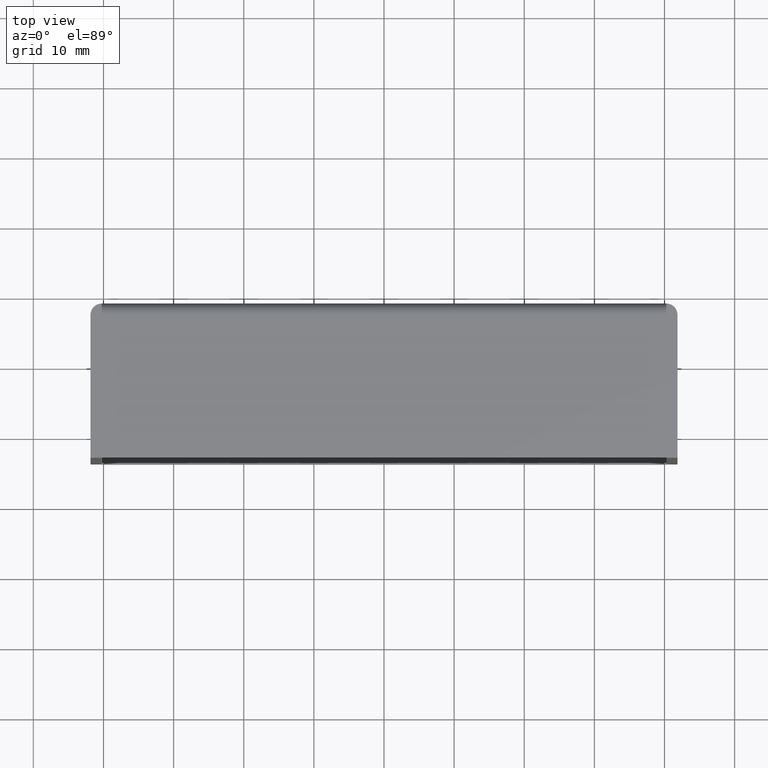
[diagram: clean part render]
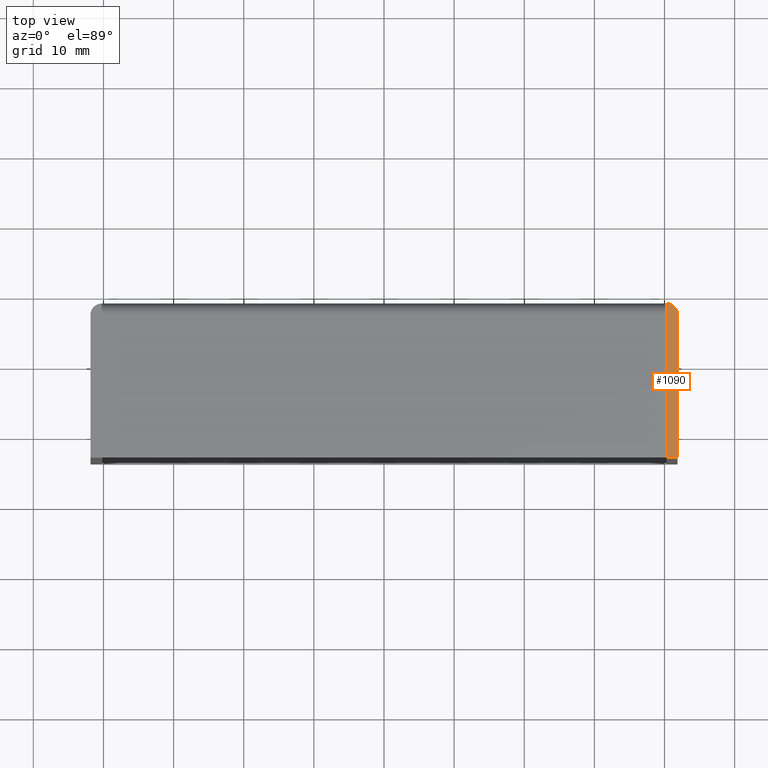
[diagram: same view with one face highlighted and labeled with its STEP entity id]
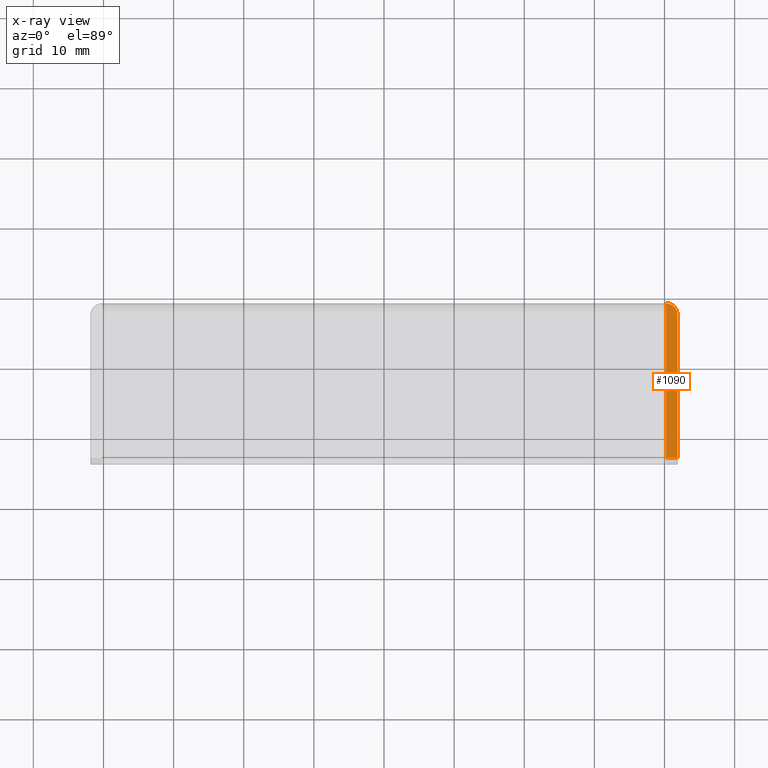
[diagram: x-ray of the same camera — body ghosted, the highlighted face saturated]
A machine part, top view. The second image highlights one B-rep face of the part: STEP entity #1090.
The next image is the same camera in x-ray: the body ghosted, the highlighted face saturated — about 0% of this face is hidden behind the body in this view.
In plain terms, the highlighted face is a freeform B-spline surface patch.
Its self-contained STEP definition (entity closure, byte-faithful):
#786=CARTESIAN_POINT('',(41.850000000000001,56.768048000000000,58.500000000000000));
#787=VERTEX_POINT('',#786);
#788=CARTESIAN_POINT('',(40.250000000000000,58.368048000000002,58.500000000000000));
#789=VERTEX_POINT('',#788);
#790=CARTESIAN_POINT('',(41.850000000000001,56.768048000000000,58.500000000000000));
#791=CARTESIAN_POINT('',(41.850000000000009,58.368047999999995,58.499999999999993));
#792=CARTESIAN_POINT('',(40.250000000000000,58.368048000000002,58.500000000000000));
#800=(BOUNDED_CURVE()B_SPLINE_CURVE(2,(#790,#791,#792),.UNSPECIFIED.,.F.,.U.)CURVE()GEOMETRIC_REPRESENTATION_ITEM()QUASI_UNIFORM_CURVE()RATIONAL_B_SPLINE_CURVE((1.0,0.707106781186548,1.0))REPRESENTATION_ITEM(''));
#801=EDGE_CURVE('',#787,#789,#800,.T.);
#1026=CARTESIAN_POINT('',(41.850000000000001,36.368047999999952,58.500000000000000));
#1027=VERTEX_POINT('',#1026);
#1033=CARTESIAN_POINT('',(40.250000000000000,36.368047999999952,58.500000000000000));
#1034=VERTEX_POINT('',#1033);
#1035=CARTESIAN_POINT('',(40.250000000000000,36.368047999999952,58.500000000000000));
#1036=CARTESIAN_POINT('',(41.850000000000001,36.368047999999952,58.500000000000000));
#1037=QUASI_UNIFORM_CURVE('',1,(#1035,#1036),.UNSPECIFIED.,.F.,.U.);
#1038=EDGE_CURVE('',#1034,#1027,#1037,.T.);
#1059=CARTESIAN_POINT('',(41.850000000000001,36.368047999999952,58.500000000000000));
#1060=CARTESIAN_POINT('',(41.850000000000001,56.768048000000000,58.500000000000000));
#1061=QUASI_UNIFORM_CURVE('',1,(#1059,#1060),.UNSPECIFIED.,.F.,.U.);
#1062=EDGE_CURVE('',#1027,#787,#1061,.T.);
#1068=CARTESIAN_POINT('',(40.170080083129648,35.269149616202853,58.500000000000000));
#1069=CARTESIAN_POINT('',(41.929918357612863,35.269149616202853,58.500000000000000));
#1070=CARTESIAN_POINT('',(40.170080083129648,59.466950121008338,58.500000000000000));
#1071=CARTESIAN_POINT('',(41.929918357612863,59.466950121008338,58.500000000000000));
#1072=B_SPLINE_SURFACE_WITH_KNOTS('',1,1,((#1068,#1070),(#1069,#1071)),.UNSPECIFIED.,.F.,.F.,.U.,(2,2),(2,2),(0.041708376630023,0.958290811256692),(0.0,24.197800504805489),.UNSPECIFIED.);
#1073=ORIENTED_EDGE('',*,*,#1062,.T.);
#1074=ORIENTED_EDGE('',*,*,#801,.T.);
#1075=CARTESIAN_POINT('',(40.250000000000000,56.768048000000000,58.500000000000000));
#1076=VERTEX_POINT('',#1075);
#1077=CARTESIAN_POINT('',(40.250000000000000,56.768048000000000,58.500000000000000));
#1078=CARTESIAN_POINT('',(40.250000000000000,58.368048000000002,58.500000000000000));
#1079=QUASI_UNIFORM_CURVE('',1,(#1077,#1078),.UNSPECIFIED.,.F.,.U.);
#1080=EDGE_CURVE('',#1076,#789,#1079,.T.);
#1081=ORIENTED_EDGE('',*,*,#1080,.F.);
#1082=CARTESIAN_POINT('',(40.250000000000000,36.368047999999952,58.500000000000000));
#1083=CARTESIAN_POINT('',(40.250000000000000,56.768048000000000,58.500000000000000));
#1084=QUASI_UNIFORM_CURVE('',1,(#1082,#1083),.UNSPECIFIED.,.F.,.U.);
#1085=EDGE_CURVE('',#1034,#1076,#1084,.T.);
#1086=ORIENTED_EDGE('',*,*,#1085,.F.);
#1087=ORIENTED_EDGE('',*,*,#1038,.T.);
#1088=EDGE_LOOP('',(#1073,#1074,#1081,#1086,#1087));
#1089=FACE_OUTER_BOUND('',#1088,.T.);
#1090=ADVANCED_FACE('',(#1089),#1072,.T.);